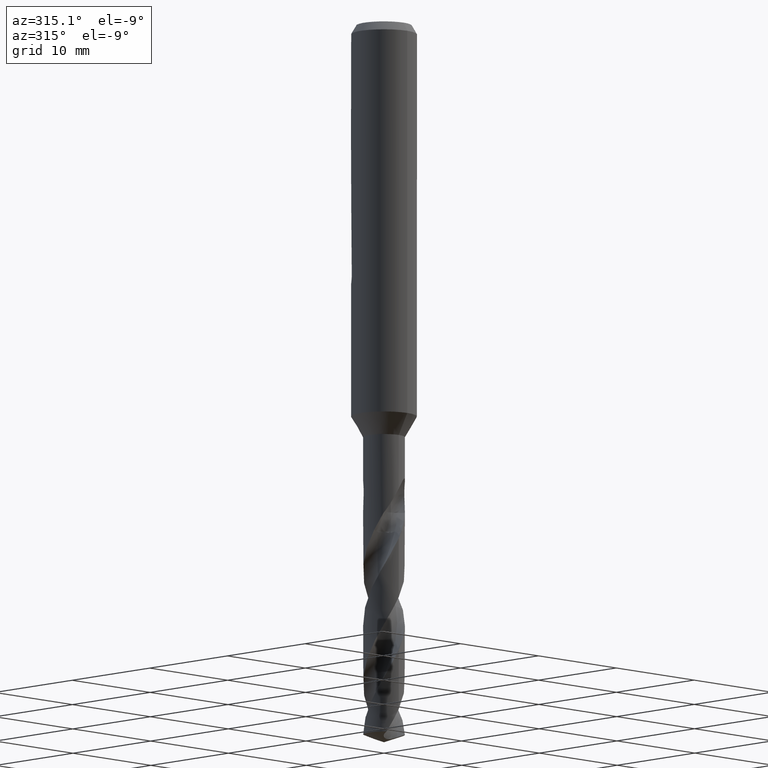
[diagram: clean part render]
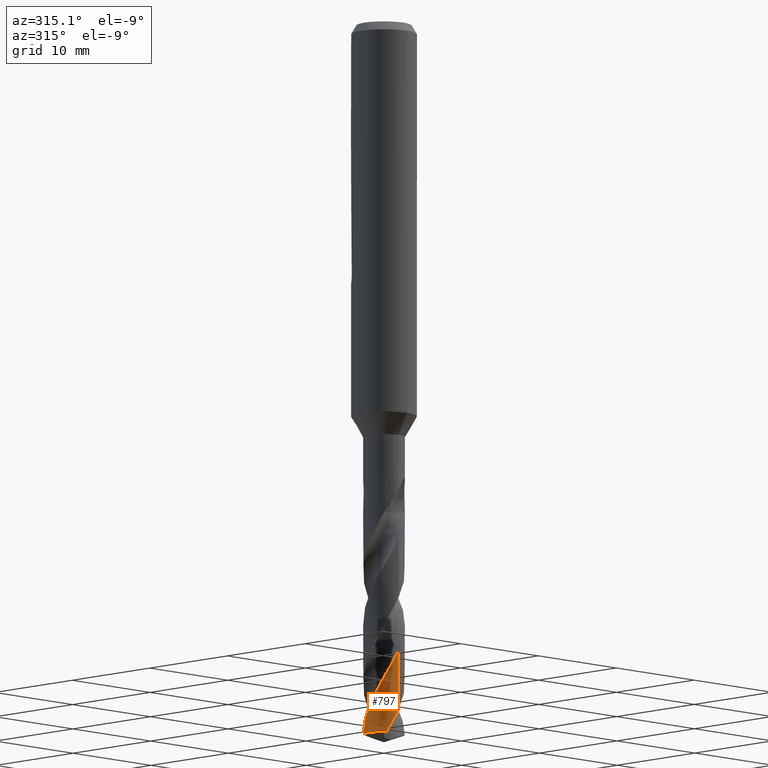
[diagram: same view with one face highlighted and labeled with its STEP entity id]
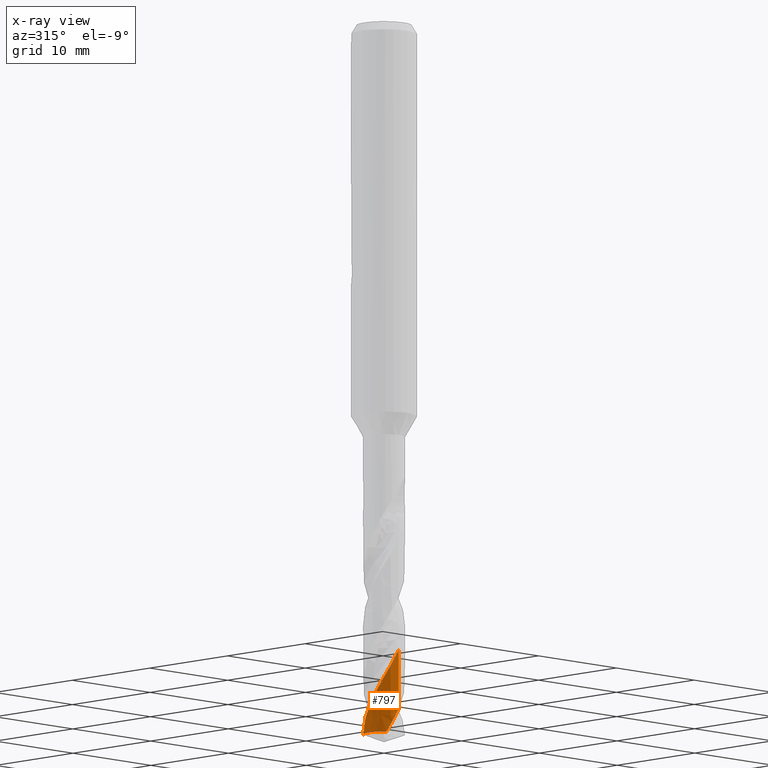
[diagram: x-ray of the same camera — body ghosted, the highlighted face saturated]
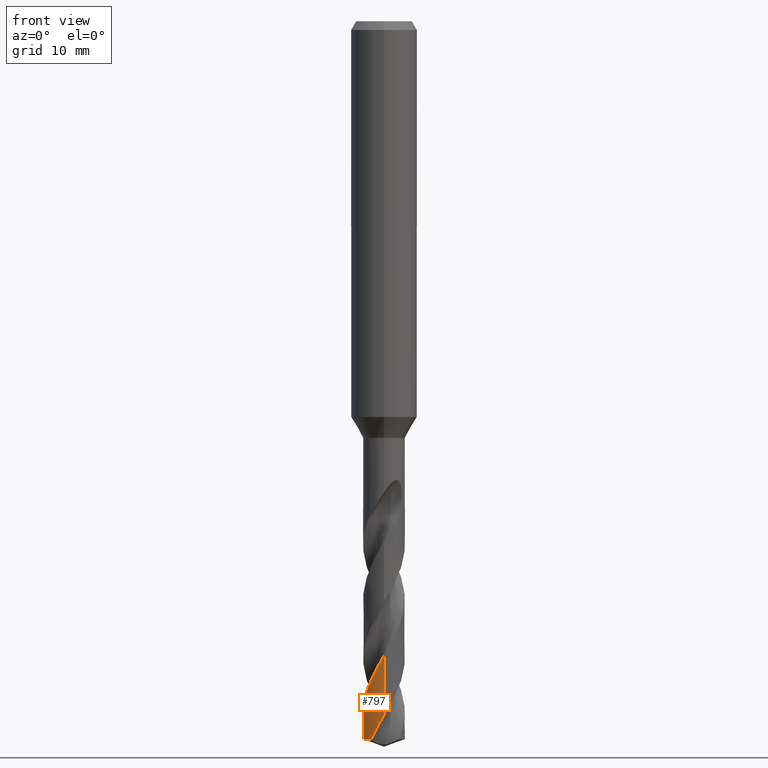
[diagram: same view with one face highlighted and labeled with its STEP entity id]
A machine part, auxiliary view. The second image highlights one B-rep face of the part: STEP entity #797.
The next image is the same camera in x-ray: the body ghosted, the highlighted face saturated — about 0% of this face is hidden behind the body in this view.
A second angle (front view) of the same face is appended — the face is thin or edge-on in the first view.
In plain terms, the highlighted conical surface has half-angle 0 deg.
Its self-contained STEP definition (entity closure, byte-faithful):
#321=VERTEX_POINT('',#893);
#433=VERTEX_POINT('',#1019);
#523=EDGE_CURVE('',#653,#321,#1114,.T.);
#653=VERTEX_POINT('',#1256);
#781=VERTEX_POINT('',#1396);
#787=EDGE_CURVE('',#781,#433,#1402,.T.);
#791=EDGE_CURVE('',#321,#433,#1406,.T.);
#797=ADVANCED_FACE('',(#1412),#1413,.T.);
#799=EDGE_CURVE('',#781,#653,#1415,.T.);
#893=CARTESIAN_POINT('',(-5.88204988575888E-011,-1.8999591538657,-57.7076213999855));
#1019=CARTESIAN_POINT('',(-1.39454879130108,1.29043933165442,-65.3084565548942));
#1114=LINE('',#3887,#3888);
#1256=CARTESIAN_POINT('',(-2.16877347012218E-016,-1.89998832601995,-63.1361090506775));
#1396=CARTESIAN_POINT('',(-1.16765856255087,-1.49885739191613,-65.3084565548942));
#1402=CIRCLE('',#7806,1.9);
#1406=B_SPLINE_CURVE_WITH_KNOTS('',3,(#7821,#7822,#7823,#7824,#7825,#7826,#7827,#7828,#7829,#7830,#7831,#7832,#7833,#7834,#7835,#7836,#7837,#7838,#7839,#7840,#7841,#7842,#7843,#7844,#7845,#7846,#7847,#7848,#7849,#7850,#7851,#7852,#7853,#7854,#7855,#7856,#7857,#7858,#7859,#7860,#7861,#7862,#7863,#7864,#7865,#7866,#7867,#7868,#7869,#7870,#7871,#7872,#7873,#7874,#7875,#7876,#7877,#7878,#7879,#7880,#7881,#7882,#7883,#7884),.UNSPECIFIED.,.F.,.F.,(4,2,2,2,2,2,2,2,2,2,2,2,2,2,2,2,2,2,2,2,2,2,2,2,2,2,2,2,2,2,2,4),(0.0,0.342838808916998,2.2712795990043,2.65320368678208,3.62317584100577,4.34833719081576,5.07354591738783,5.80386953326284,7.02161095348569,7.11731120381317,7.88891819498444,8.25710145771829,8.95772493737505,10.08306711623,10.1787223921207,10.957117236304,11.3251483394486,12.0060687106098,12.7313341380797,13.4595623507956,14.1043215593336,14.471759275186,15.0514428099591,15.7764010916037,16.5049161224871,17.1380523986259,18.2328824756898,19.0503091707482,19.6630402341296,20.5876536349777,21.0513386988443,21.5177596305979),.UNSPECIFIED.);
#1412=FACE_OUTER_BOUND('',#7894,.T.);
#1413=CONICAL_SURFACE('',#7895,1.89995,5.37390082321069E-006);
#1415=B_SPLINE_CURVE_WITH_KNOTS('',3,(#7898,#7899,#7900,#7901,#7902,#7903,#7904,#7905,#7906,#7907,#7908,#7909,#7910,#7911,#7912,#7913,#7914,#7915,#7916,#7917,#7918,#7919,#7920,#7921,#7922,#7923,#7924,#7925,#7926,#7927,#7928,#7929,#7930,#7931,#7932,#7933,#7934,#7935,#7936,#7937,#7938,#7939,#7940,#7941,#7942,#7943,#7944,#7945,#7946,#7947,#7948,#7949,#7950,#7951,#7952,#7953,#7954,#7955,#7956,#7957,#7958,#7959,#7960,#7961,#7962,#7963,#7964,#7965,#7966,#7967),.UNSPECIFIED.,.F.,.F.,(4,2,2,2,2,2,2,2,2,2,2,2,2,2,2,2,2,2,2,2,2,2,2,2,2,2,2,2,2,2,2,2,2,2,4),(0.0,1.14129969597498,1.71329585622098,2.09578422939338,2.47548582087804,3.23989044272033,3.62211457708237,4.00145131337671,4.76553095865235,5.13207277578285,5.49511289345216,6.18682460648273,6.55375001237513,7.28007276333327,8.01316604120345,8.77403255138447,9.50724667748904,10.2364387491773,10.9700634315829,12.1122844131293,12.5554950359402,13.1271546138345,14.4351768666411,14.6170242253338,15.3411547429064,15.7086700189865,16.4371672832355,17.5503339967734,17.5767966856616,18.3483379130212,18.7506709106609,19.4510265297123,20.5110477781677,21.0400359159826,21.568076041228),.UNSPECIFIED.);
#3887=CARTESIAN_POINT('',(2.32374427321902E-016,-1.89995,-56.0042282774471));
#3888=VECTOR('',#9004,1.0);
#7806=AXIS2_PLACEMENT_3D('',#9279,#9280,#9281);
#7821=CARTESIAN_POINT('',(-0.402288404332922,1.8568209763073,-46.7043250056286));
#7822=CARTESIAN_POINT('',(-0.346251420910168,1.86896217797817,-46.8031798252702));
#7823=CARTESIAN_POINT('',(-0.289746407070021,1.87854901441815,-46.9020860853644));
#7824=CARTESIAN_POINT('',(0.0865349176625868,1.92503948378458,-47.5571821573951));
#7825=CARTESIAN_POINT('',(0.411081512345527,1.88269961045397,-48.1044362140642));
#7826=CARTESIAN_POINT('',(0.769267763077487,1.73837986651422,-48.7704201064238));
#7827=CARTESIAN_POINT('',(0.827198646728516,1.71157029785052,-48.8803886866809));
#7828=CARTESIAN_POINT('',(1.02700982180456,1.60659546851518,-49.2702963877399));
#7829=CARTESIAN_POINT('',(1.16026039033926,1.5131974564507,-49.5493543215971));
#7830=CARTESIAN_POINT('',(1.36966257212546,1.32227382446982,-50.038132127248));
#7831=CARTESIAN_POINT('',(1.45116554157875,1.23226358316277,-50.2465042073179));
#7832=CARTESIAN_POINT('',(1.59586863379065,1.03806008057309,-50.6649080529079));
#7833=CARTESIAN_POINT('',(1.65881352639756,0.934205164758531,-50.8737450914053));
#7834=CARTESIAN_POINT('',(1.76446885996615,0.715029969016789,-51.2935025574888));
#7835=CARTESIAN_POINT('',(1.80672985764952,0.600267259179519,-51.5033003462953));
#7836=CARTESIAN_POINT('',(1.88931787813763,0.285595217426386,-52.0653468821685));
#7837=CARTESIAN_POINT('',(1.90906191477887,0.0817342199869623,-52.4143792214873));
#7838=CARTESIAN_POINT('',(1.89502270067333,-0.137438950649802,-52.793158885597));
#7839=CARTESIAN_POINT('',(1.89379840476996,-0.153390133394584,-52.8207505012264));
#7840=CARTESIAN_POINT('',(1.8808784278978,-0.297799067881204,-53.0709491788487));
#7841=CARTESIAN_POINT('',(1.85633271347945,-0.424754640818247,-53.293448530035));
#7842=CARTESIAN_POINT('',(1.80136207873771,-0.607159881405344,-53.6223399174189));
#7843=CARTESIAN_POINT('',(1.78074650710475,-0.66520525216903,-53.728488539217));
#7844=CARTESIAN_POINT('',(1.71279589380573,-0.830562176896445,-54.0368194159136));
#7845=CARTESIAN_POINT('',(1.65835044587759,-0.93452967241049,-54.2383770793837));
#7846=CARTESIAN_POINT('',(1.49254759660146,-1.19055680785323,-54.7654050116226));
#7847=CARTESIAN_POINT('',(1.36744056903576,-1.33241405103812,-55.0881913029574));
#7848=CARTESIAN_POINT('',(1.21119070878752,-1.46392333877536,-55.4404263479904));
#7849=CARTESIAN_POINT('',(1.19882402565375,-1.47406778486824,-55.468014860322));
#7850=CARTESIAN_POINT('',(1.08466639310121,-1.56532537771351,-55.7202386491988));
#7851=CARTESIAN_POINT('',(0.974909914309514,-1.63593944121357,-55.9447835119912));
#7852=CARTESIAN_POINT('',(0.803928582100566,-1.72258553153139,-56.2756846122015));
#7853=CARTESIAN_POINT('',(0.747701266449295,-1.74772780199619,-56.3818186552351));
#7854=CARTESIAN_POINT('',(0.584186978733282,-1.81149931835351,-56.6845099151964));
#7855=CARTESIAN_POINT('',(0.474607568480642,-1.8432368220047,-56.8804888296787));
#7856=CARTESIAN_POINT('',(0.243959701921789,-1.88812273616027,-57.2864764363946));
#7857=CARTESIAN_POINT('',(0.122982583249469,-1.89985241014282,-57.4954717629523));
#7858=CARTESIAN_POINT('',(-0.120193393116326,-1.90006488041154,-57.9149596008983));
#7859=CARTESIAN_POINT('',(-0.24168446851043,-1.88845316375971,-58.1243384858925));
#7860=CARTESIAN_POINT('',(-0.466971150341994,-1.84483375274637,-58.5207744537747));
#7861=CARTESIAN_POINT('',(-0.570878962094011,-1.81537714999398,-58.7067408142561));
#7862=CARTESIAN_POINT('',(-0.72925670062086,-1.75551515177322,-58.9989362781838));
#7863=CARTESIAN_POINT('',(-0.785676847547041,-1.73100175535594,-59.1049069889931));
#7864=CARTESIAN_POINT('',(-0.927826604133033,-1.66085205043939,-59.3782624620218));
#7865=CARTESIAN_POINT('',(-1.011349484924,-1.61134766011731,-59.5453021361129));
#7866=CARTESIAN_POINT('',(-1.18989486686823,-1.48617675156462,-59.9220427300473));
#7867=CARTESIAN_POINT('',(-1.28228805567677,-1.40724833766368,-60.1309953538379));
#7868=CARTESIAN_POINT('',(-1.45126290345279,-1.2323148334963,-60.550559860137));
#7869=CARTESIAN_POINT('',(-1.52727355625784,-1.13673827162078,-60.7600561756182));
#7870=CARTESIAN_POINT('',(-1.65122303920297,-0.945822206336915,-61.1532919471245));
#7871=CARTESIAN_POINT('',(-1.70136303921313,-0.852351513924063,-61.3359533003402));
#7872=CARTESIAN_POINT('',(-1.81626750932403,-0.587071202379432,-61.8348695462932));
#7873=CARTESIAN_POINT('',(-1.86435032300633,-0.409418271006786,-62.1488130467261));
#7874=CARTESIAN_POINT('',(-1.90266544816024,-0.0920861446602692,-62.7011215859728));
#7875=CARTESIAN_POINT('',(-1.90437511449199,0.0450271849035417,-62.9364607705518));
#7876=CARTESIAN_POINT('',(-1.88154429671998,0.283319027875169,-63.349325368923));
#7877=CARTESIAN_POINT('',(-1.8635171526482,0.384402260910973,-63.5259471776154));
#7878=CARTESIAN_POINT('',(-1.79810378437106,0.63300838977618,-63.9699086654352));
#7879=CARTESIAN_POINT('',(-1.74063384678648,0.77726199873655,-64.2357380919558));
#7880=CARTESIAN_POINT('',(-1.62894075986831,0.98110403797425,-64.636459892553));
#7881=CARTESIAN_POINT('',(-1.58755283364453,1.04674019228456,-64.7700585991468));
#7882=CARTESIAN_POINT('',(-1.49681242113195,1.17286747194122,-65.0388339770334));
#7883=CARTESIAN_POINT('',(-1.44746397340519,1.23325401672469,-65.1736594810431));
#7884=CARTESIAN_POINT('',(-1.39454879130108,1.29043933165442,-65.3084565548942));
#7894=EDGE_LOOP('',(#9285,#9286,#9287,#9288));
#7895=AXIS2_PLACEMENT_3D('',#9289,#9290,#9291);
#7898=CARTESIAN_POINT('',(-1.16765856255087,-1.49885739191614,-65.3084565548942));
#7899=CARTESIAN_POINT('',(-1.01634366217222,-1.61673437307334,-64.9799169648289));
#7900=CARTESIAN_POINT('',(-0.848751343458143,-1.71049163561756,-64.6484206519393));
#7901=CARTESIAN_POINT('',(-0.581620862779651,-1.81129230840598,-64.1548777580462));
#7902=CARTESIAN_POINT('',(-0.489914101193443,-1.83823142217336,-63.9909046006968));
#7903=CARTESIAN_POINT('',(-0.333913938820874,-1.87151135974275,-63.7162583433506));
#7904=CARTESIAN_POINT('',(-0.27086864010439,-1.88166275537267,-63.6063772997511));
#7905=CARTESIAN_POINT('',(-0.14466707916443,-1.89552962567418,-63.3868219528339));
#7906=CARTESIAN_POINT('',(-0.0815666401148924,-1.89929273780347,-63.2770996496249));
#7907=CARTESIAN_POINT('',(0.109172929976218,-1.90112464331147,-62.9473776898002));
#7908=CARTESIAN_POINT('',(0.236569453289063,-1.88952774943281,-62.7287517657496));
#7909=CARTESIAN_POINT('',(0.424760903380139,-1.85299823201503,-62.3987272912535));
#7910=CARTESIAN_POINT('',(0.486714225396157,-1.83768846123463,-62.2888612873832));
#7911=CARTESIAN_POINT('',(0.608149768875659,-1.80113242629585,-62.0693706985815));
#7912=CARTESIAN_POINT('',(0.667607578344237,-1.77995226307855,-61.9596733720612));
#7913=CARTESIAN_POINT('',(0.843740131384586,-1.70711730821631,-61.6299472471475));
#7914=CARTESIAN_POINT('',(0.956431688188785,-1.64666129730769,-61.411349148371));
#7915=CARTESIAN_POINT('',(1.11322082160674,-1.54091278827214,-61.0858154017337));
#7916=CARTESIAN_POINT('',(1.16226977636604,-1.50425148106843,-60.9804145434642));
#7917=CARTESIAN_POINT('',(1.25605017310128,-1.42685186856599,-60.7700920031555));
#7918=CARTESIAN_POINT('',(1.3007580929953,-1.38621369591423,-60.665094697965));
#7919=CARTESIAN_POINT('',(1.42495324172873,-1.26201243214041,-60.3610889685304));
#7920=CARTESIAN_POINT('',(1.49898430013929,-1.17316683157727,-60.1630039085519));
#7921=CARTESIAN_POINT('',(1.59941621571039,-1.02738565356982,-59.8583990120148));
#7922=CARTESIAN_POINT('',(1.63171500254687,-0.975263489378208,-59.7529744208456));
#7923=CARTESIAN_POINT('',(1.72018384112287,-0.815798074870586,-59.4381484395141));
#7924=CARTESIAN_POINT('',(1.76869038508094,-0.70450527098268,-59.2277700524351));
#7925=CARTESIAN_POINT('',(1.84427767336398,-0.47275818043514,-58.8074260190317));
#7926=CARTESIAN_POINT('',(1.87089797845145,-0.352972498375703,-58.5977734578467));
#7927=CARTESIAN_POINT('',(1.90128811157797,-0.105359143821615,-58.1675360741324));
#7928=CARTESIAN_POINT('',(1.90407634484946,0.0218086915839175,-57.9471529856116));
#7929=CARTESIAN_POINT('',(1.88458860066095,0.270458955106156,-57.5168800982553));
#7930=CARTESIAN_POINT('',(1.86325639891695,0.391286547862365,-57.3072289252974));
#7931=CARTESIAN_POINT('',(1.79779514996921,0.626569657363458,-56.8862320668078));
#7932=CARTESIAN_POINT('',(1.7540255746434,0.740267791945604,-56.6751106360617));
#7933=CARTESIAN_POINT('',(1.64504585708039,0.958435112990761,-56.254025660315));
#7934=CARTESIAN_POINT('',(1.57991896658446,1.06238976014064,-56.0443622345235));
#7935=CARTESIAN_POINT('',(1.38877908048099,1.31052147674424,-55.5048146532355));
#7936=CARTESIAN_POINT('',(1.250361481942,1.44319244289818,-55.1749287532857));
#7937=CARTESIAN_POINT('',(1.03383930565624,1.5957577676476,-54.7190720750511));
#7938=CARTESIAN_POINT('',(0.970902352449479,1.63480885304357,-54.5919467570786));
#7939=CARTESIAN_POINT('',(0.822035076211565,1.71555643511824,-54.300038854516));
#7940=CARTESIAN_POINT('',(0.735049327211169,1.75455831759873,-54.1348684685281));
#7941=CARTESIAN_POINT('',(0.441675630513028,1.86059281695681,-53.5947981767116));
#7942=CARTESIAN_POINT('',(0.22667435411149,1.8987625062725,-53.227155993333));
#7943=CARTESIAN_POINT('',(-0.0200650892112042,1.90006551110475,-52.7992160738662));
#7944=CARTESIAN_POINT('',(-0.0501592437365368,1.89951049385673,-52.7469145298782));
#7945=CARTESIAN_POINT('',(-0.200527754606697,1.89314486885012,-52.4861116446231));
#7946=CARTESIAN_POINT('',(-0.320241676441549,1.87664530878123,-52.2791137041951));
#7947=CARTESIAN_POINT('',(-0.497604019429036,1.83463435714056,-51.9655125689891));
#7948=CARTESIAN_POINT('',(-0.556531687986889,1.81762133233932,-51.8600929711405));
#7949=CARTESIAN_POINT('',(-0.72932661534519,1.75856020621665,-51.5450132404495));
#7950=CARTESIAN_POINT('',(-0.840027524723614,1.70845104582318,-51.3343970327889));
#7951=CARTESIAN_POINT('',(-1.10623017419089,1.55575279766613,-50.804936997116));
#7952=CARTESIAN_POINT('',(-1.25235988881917,1.44060995528374,-50.4898250216572));
#7953=CARTESIAN_POINT('',(-1.38230700551745,1.30343288729763,-50.1617359387132));
#7954=CARTESIAN_POINT('',(-1.3853085894735,1.30024227466061,-50.1541267892957));
#7955=CARTESIAN_POINT('',(-1.47579108811641,1.20339025811411,-49.9240046086773));
#7956=CARTESIAN_POINT('',(-1.55383841418227,1.10086463165243,-49.7032821759921));
#7957=CARTESIAN_POINT('',(-1.65617488189957,0.933425320810959,-49.365664505936));
#7958=CARTESIAN_POINT('',(-1.68814066337519,0.874275502707775,-49.2501698432516));
#7959=CARTESIAN_POINT('',(-1.76691258444294,0.708049997260711,-48.9328030786546));
#7960=CARTESIAN_POINT('',(-1.80701903344594,0.598295791080244,-48.7300106895828));
#7961=CARTESIAN_POINT('',(-1.88195913746887,0.31475168359086,-48.2234049876255));
#7962=CARTESIAN_POINT('',(-1.90305341168674,0.138603109433136,-47.9225970860473));
#7963=CARTESIAN_POINT('',(-1.89776595808677,-0.126033721146476,-47.46553429164));
#7964=CARTESIAN_POINT('',(-1.88987173445154,-0.213936689356907,-47.3132060546331));
#7965=CARTESIAN_POINT('',(-1.86201017463729,-0.387644444675913,-47.0088340055342));
#7966=CARTESIAN_POINT('',(-1.84216457147711,-0.472974779937216,-46.8562156146062));
#7967=CARTESIAN_POINT('',(-1.81653563185859,-0.556613338225525,-46.7049022371332));
#9004=DIRECTION('',(-6.58091309288344E-022,5.37390082318482E-006,0.999999999985561));
#9279=CARTESIAN_POINT('',(0.0,0.0,-65.3084565548942));
#9280=DIRECTION('',(0.0,0.0,-1.0));
#9281=DIRECTION('',(0.0,1.0,0.0));
#9285=ORIENTED_EDGE('',*,*,#523,.T.);
#9286=ORIENTED_EDGE('',*,*,#791,.T.);
#9287=ORIENTED_EDGE('',*,*,#787,.F.);
#9288=ORIENTED_EDGE('',*,*,#799,.T.);
#9289=CARTESIAN_POINT('',(0.0,0.0,-56.0042282774471));
#9290=DIRECTION('',(0.0,-0.0,-1.0));
#9291=DIRECTION('',(0.0,1.0,0.0));